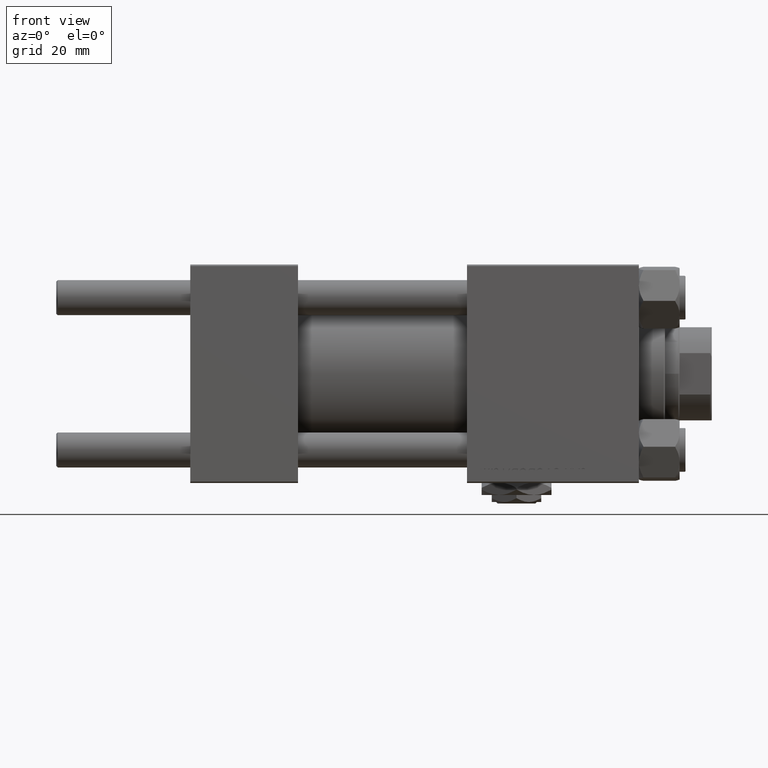
[diagram: clean part render]
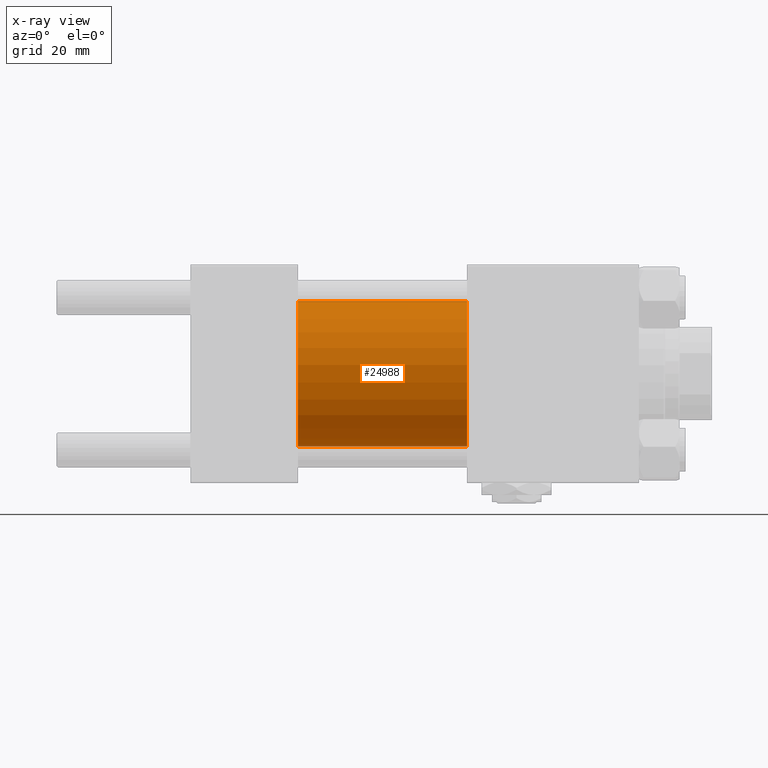
[diagram: x-ray — body ghosted, one internal face saturated and labeled with its STEP entity id]
A machine part, front view, then the same camera in x-ray: the body is ghosted and one INTERNAL B-rep face — a face not visible from any outside direction — is saturated and labeled: STEP entity #24988.
In plain terms, the highlighted cylindrical surface (partial cylindrical patch) has radius 25 mm, axis along (-1, -0, -0).
Its self-contained STEP definition (entity closure, byte-faithful):
#1401 = DIRECTION ( 'NONE',  ( 1.000000000000000000, 0.000000000000000000, 0.000000000000000000 ) ) ;
#4110 = FACE_OUTER_BOUND ( 'NONE', #4635, .T. ) ;
#4635 = EDGE_LOOP ( 'NONE', ( #29846, #43614, #19723, #15029 ) ) ;
#4704 = LINE ( 'NONE', #20630, #33659 ) ;
#5093 = LINE ( 'NONE', #32542, #11758 ) ;
#7051 = EDGE_CURVE ( 'NONE', #44173, #44934, #5093, .T. ) ;
#7266 = DIRECTION ( 'NONE',  ( 0.000000000000000000, 0.000000000000000000, 1.000000000000000000 ) ) ;
#9767 = CARTESIAN_POINT ( 'NONE',  ( 37.00000000000000000, 0.000000000000000000, 0.000000000000000000 ) ) ;
#11758 = VECTOR ( 'NONE', #48729, 1000.000000000000000 ) ;
#12804 = DIRECTION ( 'NONE',  ( -1.000000000000000000, -0.000000000000000000, -0.000000000000000000 ) ) ;
#12858 = EDGE_CURVE ( 'NONE', #30251, #48500, #4704, .T. ) ;
#15029 = ORIENTED_EDGE ( 'NONE', *, *, #12858, .F. ) ;
#19723 = ORIENTED_EDGE ( 'NONE', *, *, #51082, .F. ) ;
#19824 = CARTESIAN_POINT ( 'NONE',  ( 95.00000000000000000, 0.000000000000000000, 25.00000000000000000 ) ) ;
#19942 = CARTESIAN_POINT ( 'NONE',  ( 95.00000000000000000, 3.061616997868382254E-15, -25.00000000000000000 ) ) ;
#20428 = AXIS2_PLACEMENT_3D ( 'NONE', #9767, #1401, #21258 ) ;
#20630 = CARTESIAN_POINT ( 'NONE',  ( 95.00000000000000000, 0.000000000000000000, 25.00000000000000000 ) ) ;
#21258 = DIRECTION ( 'NONE',  ( 0.000000000000000000, 0.000000000000000000, -1.000000000000000000 ) ) ;
#21596 = CARTESIAN_POINT ( 'NONE',  ( 95.00000000000000000, 0.000000000000000000, 0.000000000000000000 ) ) ;
#24988 = ADVANCED_FACE ( 'NONE', ( #4110 ), #51143, .F. ) ;
#26040 = CIRCLE ( 'NONE', #28546, 25.00000000000000000 ) ;
#28546 = AXIS2_PLACEMENT_3D ( 'NONE', #21596, #32842, #28669 ) ;
#28669 = DIRECTION ( 'NONE',  ( 0.000000000000000000, 0.000000000000000000, -1.000000000000000000 ) ) ;
#29786 = AXIS2_PLACEMENT_3D ( 'NONE', #51659, #51410, #7266 ) ;
#29846 = ORIENTED_EDGE ( 'NONE', *, *, #42036, .T. ) ;
#30251 = VERTEX_POINT ( 'NONE', #19824 ) ;
#31134 = CARTESIAN_POINT ( 'NONE',  ( 37.00000000000000000, 0.000000000000000000, 25.00000000000000000 ) ) ;
#31262 = CIRCLE ( 'NONE', #20428, 25.00000000000000000 ) ;
#32542 = CARTESIAN_POINT ( 'NONE',  ( 95.00000000000000000, 3.061616997868382254E-15, -25.00000000000000000 ) ) ;
#32842 = DIRECTION ( 'NONE',  ( 1.000000000000000000, 0.000000000000000000, 0.000000000000000000 ) ) ;
#33659 = VECTOR ( 'NONE', #12804, 1000.000000000000000 ) ;
#42036 = EDGE_CURVE ( 'NONE', #30251, #44173, #26040, .T. ) ;
#43614 = ORIENTED_EDGE ( 'NONE', *, *, #7051, .T. ) ;
#44173 = VERTEX_POINT ( 'NONE', #19942 ) ;
#44934 = VERTEX_POINT ( 'NONE', #45071 ) ;
#45071 = CARTESIAN_POINT ( 'NONE',  ( 37.00000000000000000, 3.061616997868382254E-15, -25.00000000000000000 ) ) ;
#48500 = VERTEX_POINT ( 'NONE', #31134 ) ;
#48729 = DIRECTION ( 'NONE',  ( -1.000000000000000000, -0.000000000000000000, -0.000000000000000000 ) ) ;
#51082 = EDGE_CURVE ( 'NONE', #48500, #44934, #31262, .T. ) ;
#51143 = CYLINDRICAL_SURFACE ( 'NONE', #29786, 25.00000000000000000 ) ;
#51410 = DIRECTION ( 'NONE',  ( -1.000000000000000000, -0.000000000000000000, -0.000000000000000000 ) ) ;
#51659 = CARTESIAN_POINT ( 'NONE',  ( 95.00000000000000000, 0.000000000000000000, 0.000000000000000000 ) ) ;